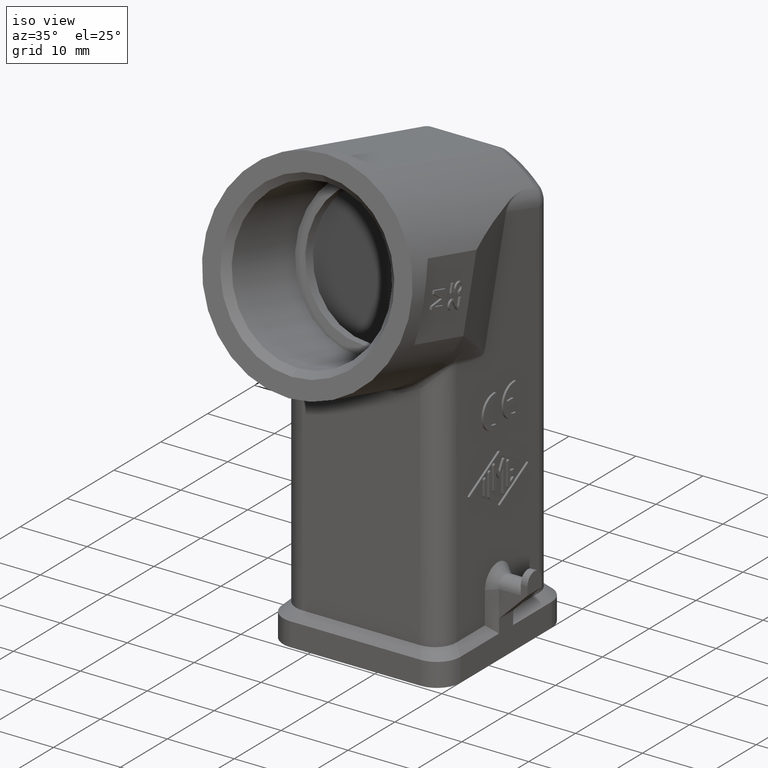
[diagram: clean part render]
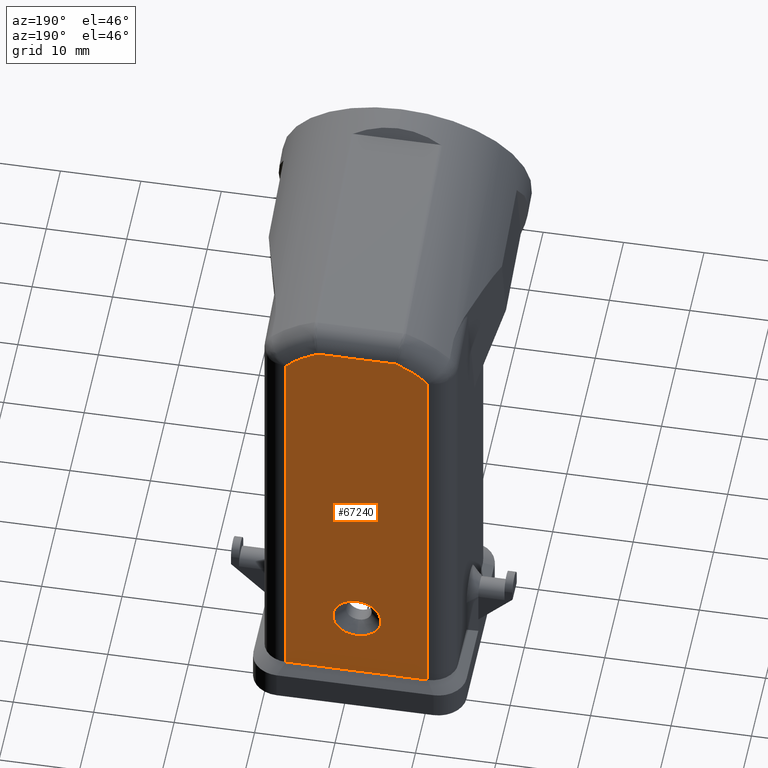
[diagram: tour spotlight — one face highlighted and labeled with its STEP entity id]
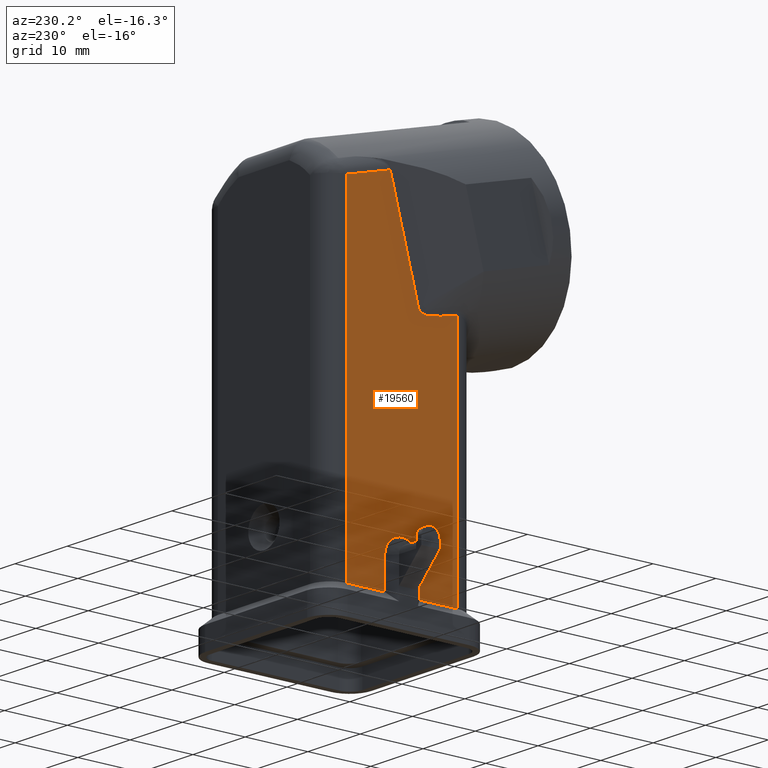
[diagram: tour spotlight — one face highlighted and labeled with its STEP entity id]
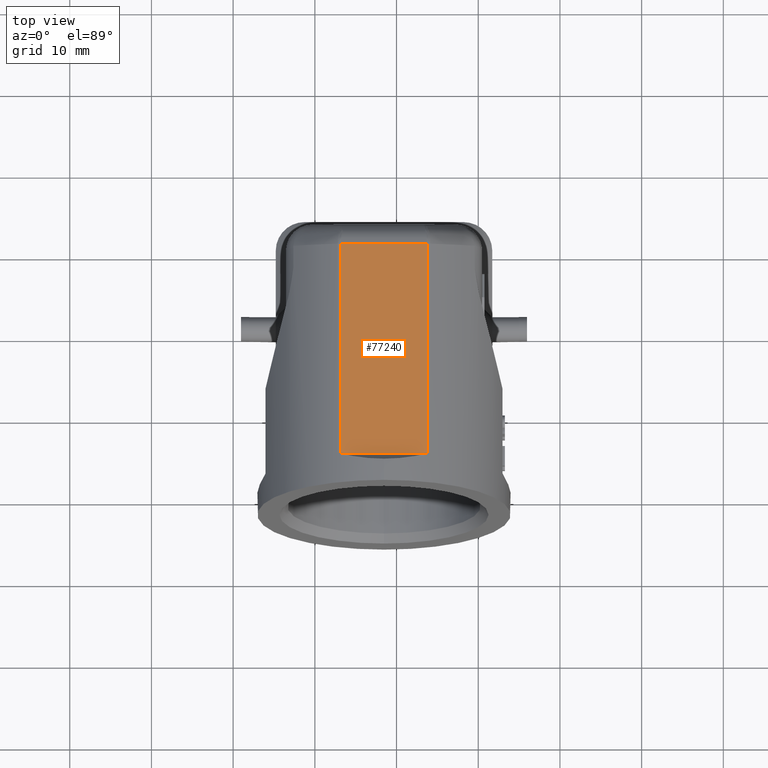
[diagram: tour spotlight — one face highlighted and labeled with its STEP entity id]
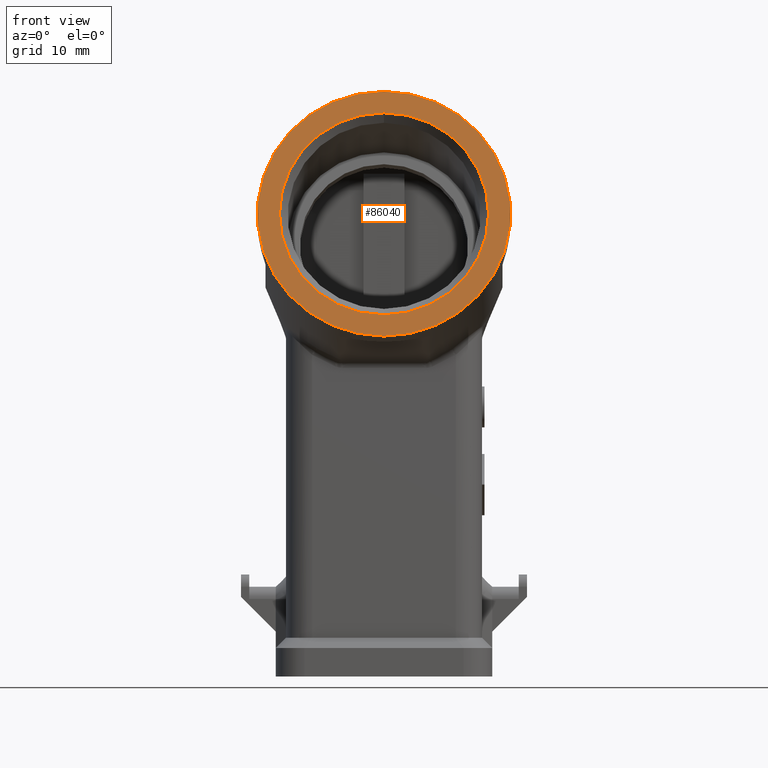
[diagram: tour spotlight — one face highlighted and labeled with its STEP entity id]
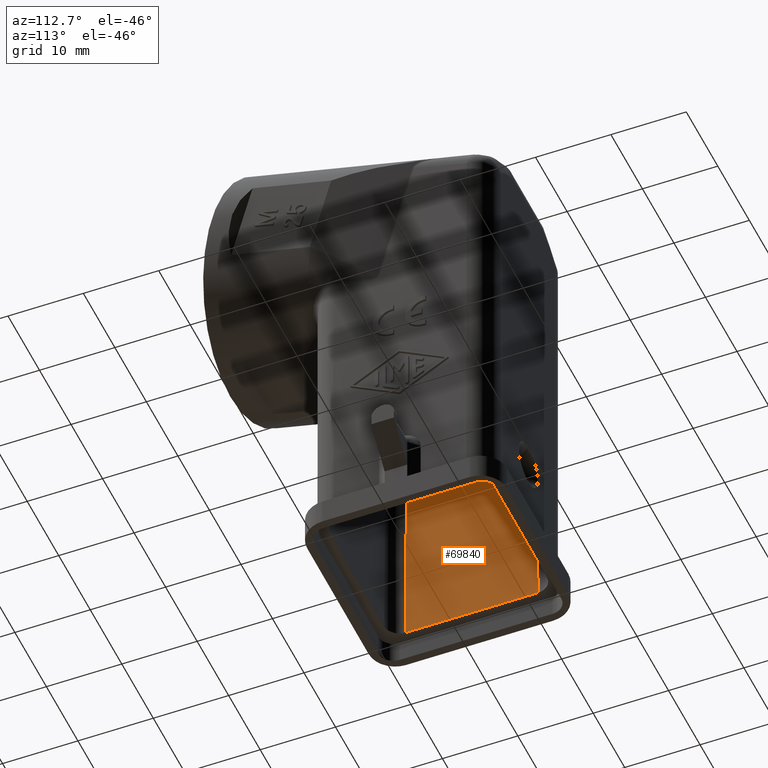
[diagram: tour spotlight — one face highlighted and labeled with its STEP entity id]
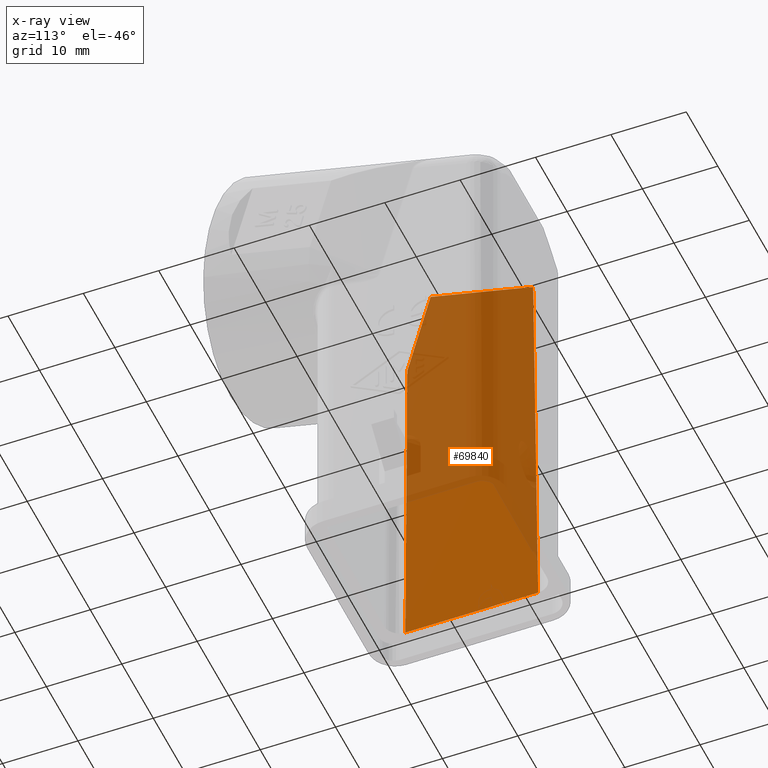
[diagram: x-ray of the same camera — body ghosted, this tour face saturated]
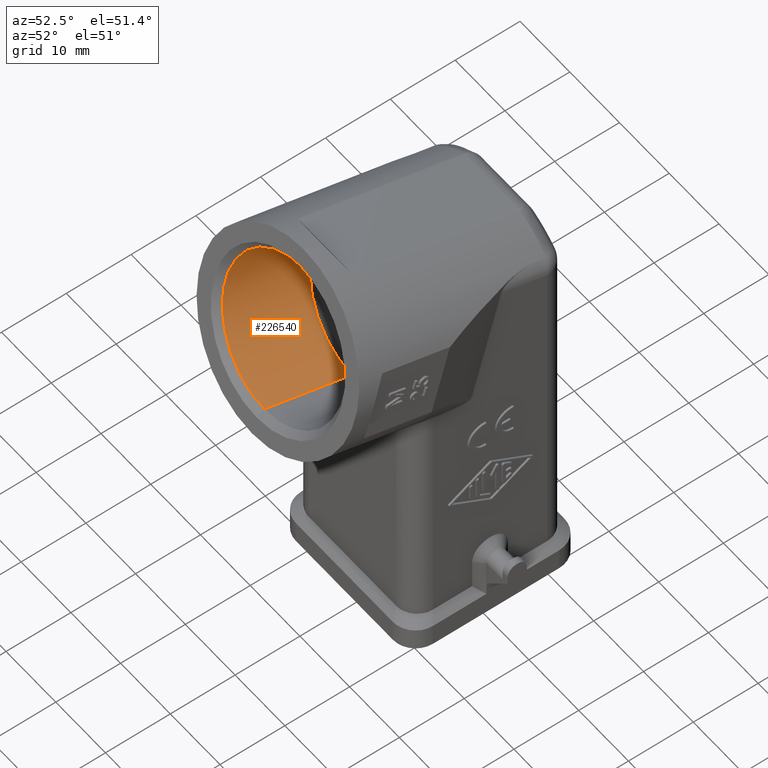
[diagram: tour spotlight — one face highlighted and labeled with its STEP entity id]
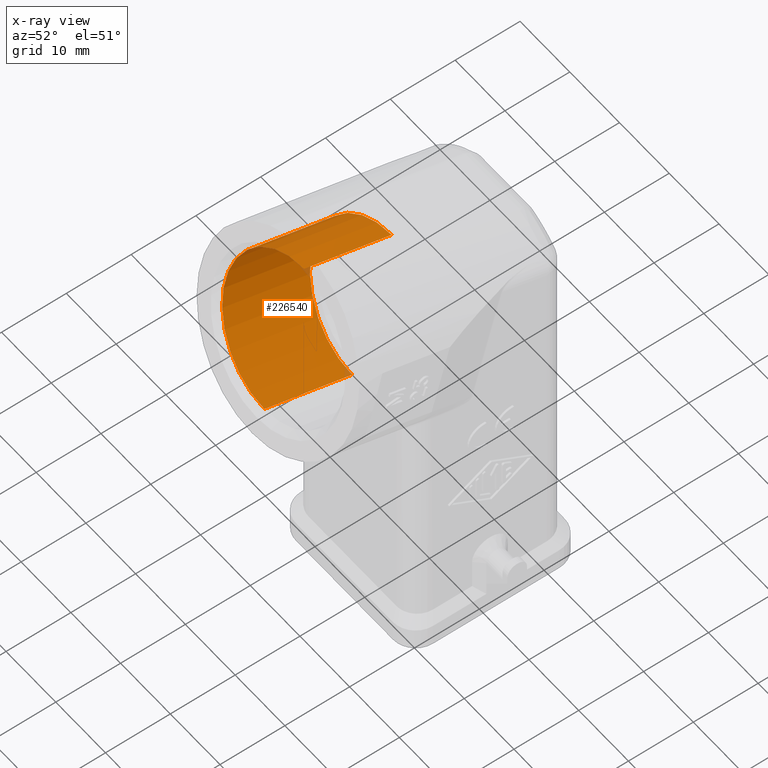
[diagram: x-ray of the same camera — body ghosted, this tour face saturated]
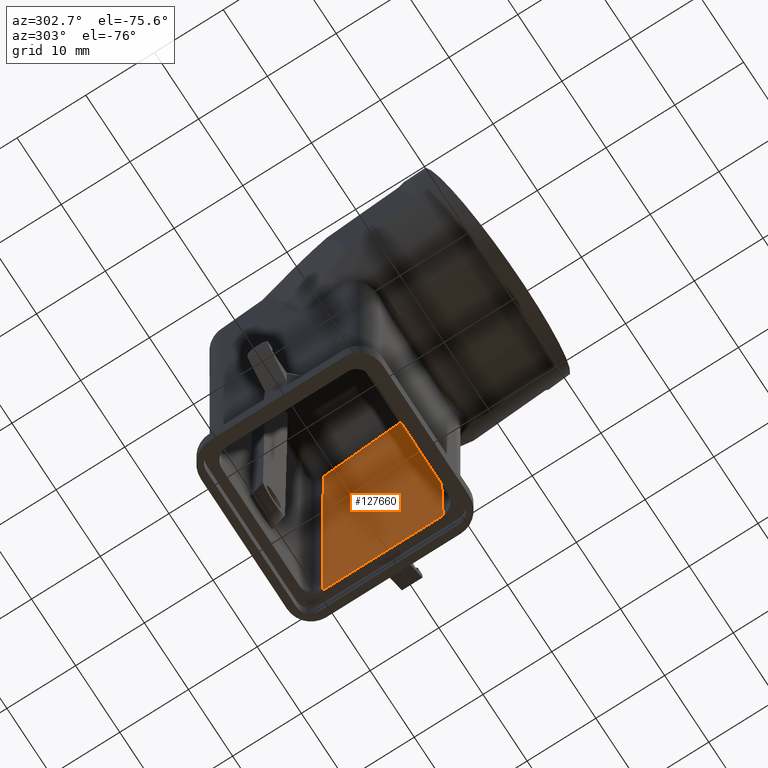
[diagram: tour spotlight — one face highlighted and labeled with its STEP entity id]
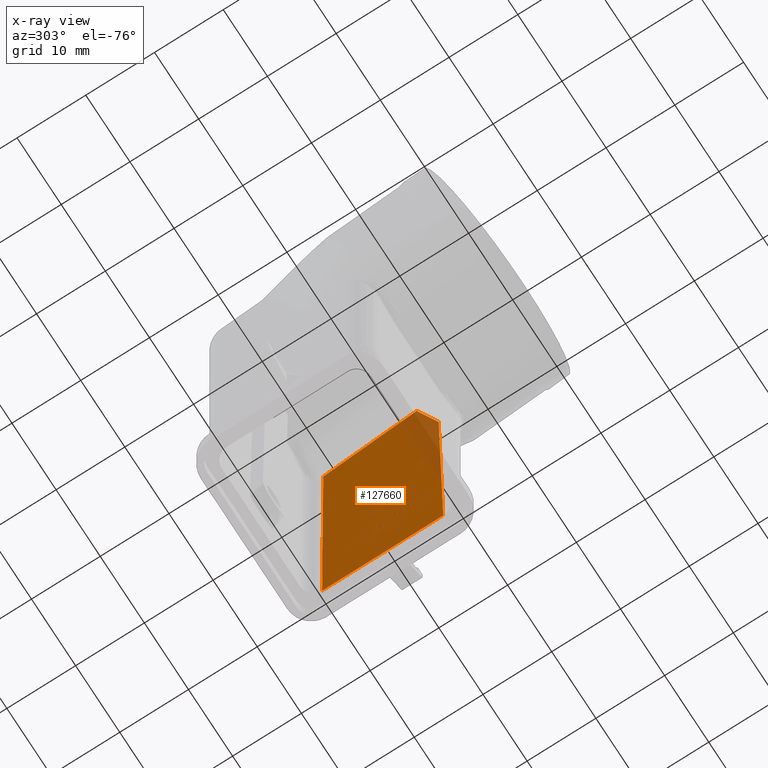
[diagram: x-ray of the same camera — body ghosted, this tour face saturated]
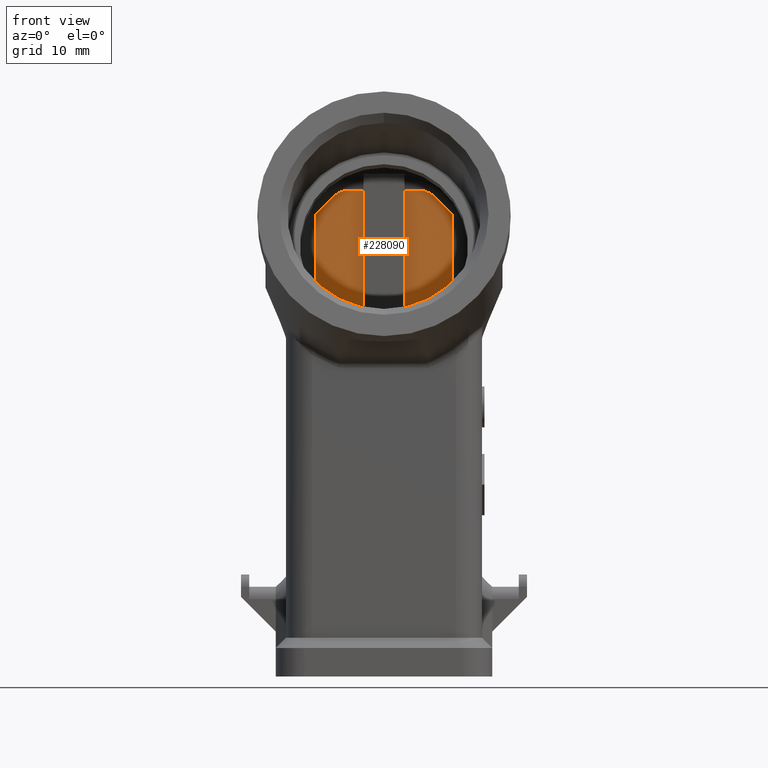
[diagram: tour spotlight — one face highlighted and labeled with its STEP entity id]
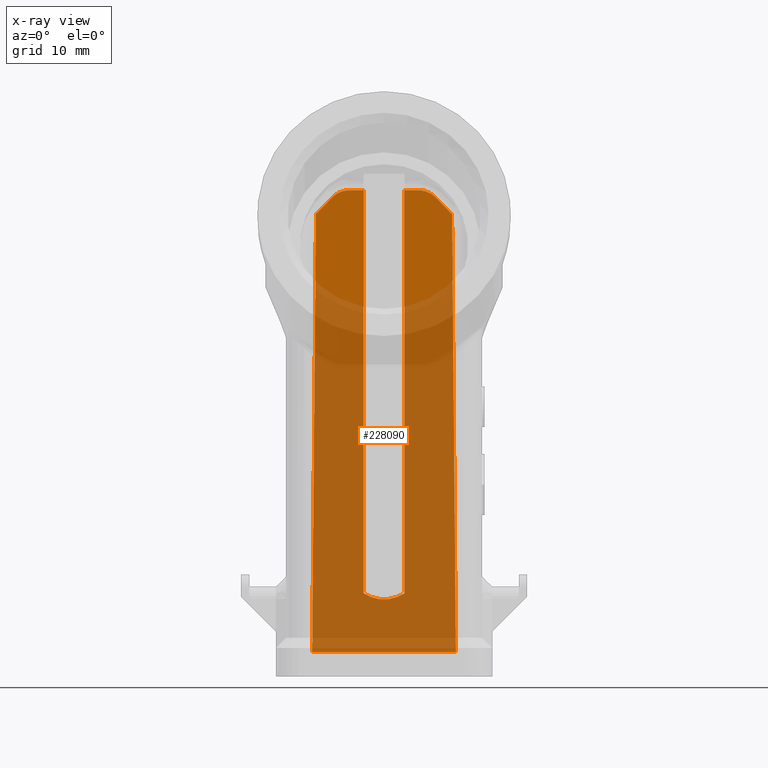
[diagram: x-ray of the same camera — body ghosted, this tour face saturated]
A machine part: a face-by-face anatomy tour. The part has 336 B-rep faces; the first image is the clean iso view, then the 8 largest visible faces are spotlighted one at a time (largest first), each with its STEP entity span.

Face 1 — auxiliary view, entity #67240. In plain terms, the highlighted planar face has unit normal (-0, -1, 0).
Definition (entity closure, byte-faithful):
#16920=CARTESIAN_POINT('',(7.30900703730865E-16,43.2856298515438,
56.1938619231087));
#16930=DIRECTION('',(1.,-2.28406469915895E-16,6.12013291600078E-17));
#16940=VECTOR('',#16930,1.);
#16950=LINE('',#16920,#16940);
#16960=CARTESIAN_POINT('',(-4.85798314623297,43.2856298515438,
56.1938619231085));
#16970=VERTEX_POINT('',#16960);
#16980=CARTESIAN_POINT('',(4.85798314623295,43.2856298515438,
56.1938619231085));
#16990=VERTEX_POINT('',#16980);
#17000=EDGE_CURVE('',#16970,#16990,#16950,.T.);
#42080=CARTESIAN_POINT('',(-8.80000000000005,43.2856298515438,
1.24999999999999));
#42090=VERTEX_POINT('',#42080);
#49460=CARTESIAN_POINT('',(-8.80000000000004,43.2856298515438,-3.5));
#49470=DIRECTION('',(0.,0.,1.));
#49480=VECTOR('',#49470,1.);
#49490=LINE('',#49460,#49480);
#49500=CARTESIAN_POINT('',(-8.80000000000005,43.2856298515438,
53.3919928742765));
#49510=VERTEX_POINT('',#49500);
#49520=EDGE_CURVE('',#42090,#49510,#49490,.T.);
#55840=CARTESIAN_POINT('',(-4.48104832289784E-15,43.2856298515438,13.5))
;
#55850=VERTEX_POINT('',#55840);
#56050=CARTESIAN_POINT('',(-3.18456548554015E-14,43.2856298515438,
7.49999999999997));
#56060=VERTEX_POINT('',#56050);
#56090=CARTESIAN_POINT('',(-1.79796545692776E-14,43.2856298515438,10.5))
;
#56100=DIRECTION('',(-3.97228643331991E-17,1.,0.));
#56110=DIRECTION('',(-4.62200009537459E-15,-1.83599082736598E-31,-1.));
#56120=AXIS2_PLACEMENT_3D('',#56090,#56100,#56110);
#56130=CIRCLE('',#56120,3.00000000000003);
#56140=EDGE_CURVE('',#55850,#56060,#56130,.T.);
#56450=CARTESIAN_POINT('',(8.80000000000002,43.2856298515438,
1.24999999999999));
#56460=VERTEX_POINT('',#56450);
#56490=CARTESIAN_POINT('',(0.,43.2856298515438,1.25));
#56500=DIRECTION('',(1.,-2.28406469915895E-16,-1.74315279842105E-32));
#56510=VECTOR('',#56500,1.);
#56520=LINE('',#56490,#56510);
#56530=EDGE_CURVE('',#42090,#56460,#56520,.T.);
#57930=CARTESIAN_POINT('',(-4.85798314615202,43.2856298515438,
56.1938619231445));
#57940=CARTESIAN_POINT('',(-4.91210413683624,43.2856298515438,
56.1697739848495));
#57950=CARTESIAN_POINT('',(-4.96605258596442,43.2856298515438,
56.1452859123296));
#57960=CARTESIAN_POINT('',(-5.31449420333209,43.2856298515438,
55.9840238903091));
#57970=CARTESIAN_POINT('',(-5.60360154307623,43.2856298515438,
55.8358142229987));
#57980=CARTESIAN_POINT('',(-6.16929843960284,43.2856298515438,
55.5166053085174));
#57990=CARTESIAN_POINT('',(-6.44565506302657,43.2856298515438,
55.3457480906608));
#58000=CARTESIAN_POINT('',(-6.98415426883113,43.2856298515438,
54.9824824365523));
#58010=CARTESIAN_POINT('',(-7.24606613497108,43.2856298515438,
54.7902459036616));
#58020=CARTESIAN_POINT('',(-7.5001949863847,43.2856298515438,
54.5878339211648));
#58030=CARTESIAN_POINT('',(-7.69921571777055,43.2856298515438,
54.4293151989745));
#58040=CARTESIAN_POINT('',(-7.89327004096959,43.2856298515438,
54.2647093999475));
#58050=CARTESIAN_POINT('',(-8.27098753693122,43.2856298515438,
53.9238481101173));
#58060=CARTESIAN_POINT('',(-8.4546507096938,43.2856298515438,
53.747592619314));
#58070=CARTESIAN_POINT('',(-8.68915248568532,43.2856298515438,
53.5083811957088));
#58080=CARTESIAN_POINT('',(-8.74485822656383,43.2856298515438,
53.4504509038786));
#58090=CARTESIAN_POINT('',(-8.8000000000471,43.2856298515438,
53.3919928742266));
#58100=B_SPLINE_CURVE_WITH_KNOTS('',3,(#57930,#57940,#57950,#57960,
#57970,#57980,#57990,#58000,#58010,#58020,#58030,#58040,#58050,#58060,
#58070,#58080,#58090),.UNSPECIFIED.,.F.,.F.,(4,2,2,2,3,2,2,4),(
85.0804374208576,85.2810161263551,86.3801878117313,87.4789743089414,
88.5772675370701,89.4373899508961,90.2975123647221,90.5690215133592),
.UNSPECIFIED.);
#58110=EDGE_CURVE('',#16970,#49510,#58100,.T.);
#66800=CARTESIAN_POINT('',(-13.25,43.2856298515438,1.25));
#66810=DIRECTION('',(-2.28406469915895E-16,-1.,0.));
#66820=DIRECTION('',(1.,-2.28406469915895E-16,0.));
#66830=AXIS2_PLACEMENT_3D('',#66800,#66810,#66820);
#66840=PLANE('',#66830);
#66850=EDGE_CURVE('',#56060,#55850,#56130,.T.);
#66860=ORIENTED_EDGE('',*,*,#66850,.F.);
#66870=ORIENTED_EDGE('',*,*,#56140,.F.);
#66880=EDGE_LOOP('',(#66870,#66860));
#66890=FACE_BOUND('',#66880,.T.);
#66900=ORIENTED_EDGE('',*,*,#58110,.F.);
#66910=ORIENTED_EDGE('',*,*,#49520,.T.);
#66920=ORIENTED_EDGE('',*,*,#56530,.F.);
#66930=CARTESIAN_POINT('',(8.80000000000001,43.2856298515438,-3.5));
#66940=DIRECTION('',(0.,0.,1.));
#66950=VECTOR('',#66940,1.);
#66960=LINE('',#66930,#66950);
#66970=CARTESIAN_POINT('',(8.80000000000002,43.2856298515438,
53.3919928742765));
#66980=VERTEX_POINT('',#66970);
#66990=EDGE_CURVE('',#56460,#66980,#66960,.T.);
#67000=ORIENTED_EDGE('',*,*,#66990,.F.);
#67010=CARTESIAN_POINT('',(4.857983146152,43.2856298515438,
56.1938619231445));
#67020=CARTESIAN_POINT('',(4.91210413683622,43.2856298515438,
56.1697739848495));
#67030=CARTESIAN_POINT('',(4.96605258596439,43.2856298515438,
56.1452859123296));
#67040=CARTESIAN_POINT('',(5.31449420333206,43.2856298515438,
55.9840238903091));
#67050=CARTESIAN_POINT('',(5.6036015430762,43.2856298515438,
55.8358142229987));
#67060=CARTESIAN_POINT('',(6.16929843960282,43.2856298515438,
55.5166053085174));
#67070=CARTESIAN_POINT('',(6.44565506302655,43.2856298515438,
55.3457480906608));
#67080=CARTESIAN_POINT('',(6.98415426883111,43.2856298515438,
54.9824824365523));
#67090=CARTESIAN_POINT('',(7.24606613497106,43.2856298515438,
54.7902459036616));
#67100=CARTESIAN_POINT('',(7.50019498638467,43.2856298515438,
54.5878339211648));
#67110=CARTESIAN_POINT('',(7.69921571777052,43.2856298515438,
54.4293151989745));
#67120=CARTESIAN_POINT('',(7.89327004096956,43.2856298515438,
54.2647093999475));
#67130=CARTESIAN_POINT('',(8.27098753693119,43.2856298515438,
53.9238481101173));
#67140=CARTESIAN_POINT('',(8.45465070969378,43.2856298515438,
53.747592619314));
#67150=CARTESIAN_POINT('',(8.68915248568529,43.2856298515438,
53.5083811957088));
#67160=CARTESIAN_POINT('',(8.7448582265638,43.2856298515438,
53.4504509038786));
#67170=CARTESIAN_POINT('',(8.80000000004707,43.2856298515438,
53.3919928742266));
#67180=B_SPLINE_CURVE_WITH_KNOTS('',3,(#67010,#67020,#67030,#67040,
#67050,#67060,#67070,#67080,#67090,#67100,#67110,#67120,#67130,#67140,
#67150,#67160,#67170),.UNSPECIFIED.,.F.,.F.,(4,2,2,2,3,2,2,4),(
85.0804374208576,85.2810161263551,86.3801878117313,87.4789743089414,
88.5772675370701,89.4373899508961,90.2975123647221,90.5690215133592),
.UNSPECIFIED.);
#67190=EDGE_CURVE('',#16990,#66980,#67180,.T.);
#67200=ORIENTED_EDGE('',*,*,#67190,.T.);
#67210=ORIENTED_EDGE('',*,*,#17000,.T.);
#67220=EDGE_LOOP('',(#67210,#67200,#67000,#66920,#66910,#66900));
#67230=FACE_OUTER_BOUND('',#67220,.T.);
#67240=ADVANCED_FACE('',(#66890,#67230),#66840,.F.);

Face 2 — auxiliary view, entity #19560. In plain terms, the highlighted planar face has unit normal (-1, 0, 0).
Definition (entity closure, byte-faithful):
#4620=CARTESIAN_POINT('',(-12.,22.4856298515438,1.25));
#4630=VERTEX_POINT('',#4620);
#4680=CARTESIAN_POINT('',(-12.,22.4856298515438,-3.5));
#4690=DIRECTION('',(0.,0.,1.));
#4700=VECTOR('',#4690,1.);
#4710=LINE('',#4680,#4700);
#4720=CARTESIAN_POINT('',(-12.,22.4856298515438,38.6973022111864));
#4730=VERTEX_POINT('',#4720);
#4740=EDGE_CURVE('',#4630,#4730,#4710,.T.);
#6270=CARTESIAN_POINT('',(-12.,34.0356298515438,6.));
#6280=VERTEX_POINT('',#6270);
#6510=CARTESIAN_POINT('',(-12.,34.0356298515438,1.25));
#6520=VERTEX_POINT('',#6510);
#6550=CARTESIAN_POINT('',(-12.,34.0356298515438,-3.5));
#6560=DIRECTION('',(0.,0.,1.));
#6570=VECTOR('',#6560,1.);
#6580=LINE('',#6550,#6570);
#6590=EDGE_CURVE('',#6520,#6280,#6580,.T.);
#15940=CARTESIAN_POINT('',(-12.,33.1551196408554,55.2490174341222));
#15950=VERTEX_POINT('',#15940);
#17520=CARTESIAN_POINT('',(-12.,31.2856298515438,54.5));
#17530=DIRECTION('',(-1.,4.60527994506155E-17,0.));
#17540=DIRECTION('',(-4.60527994506155E-17,-1.,0.));
#17550=AXIS2_PLACEMENT_3D('',#17520,#17530,#17540);
#17560=PLANE('',#17550);
#17570=CARTESIAN_POINT('',(-12.,28.6650454124902,38.4918329904324));
#17580=CARTESIAN_POINT('',(-12.,28.658407552892,38.4710673852753));
#17590=CARTESIAN_POINT('',(-12.,28.6513634272172,38.450508087265));
#17600=CARTESIAN_POINT('',(-12.,28.640005236563,38.4200184276398));
#17610=CARTESIAN_POINT('',(-12.,28.6360871726545,38.4099134223298));
#17620=CARTESIAN_POINT('',(-12.,28.6279566102855,38.3898264786181));
#17630=CARTESIAN_POINT('',(-12.,28.6237441118251,38.3798445402164));
#17640=CARTESIAN_POINT('',(-12.,28.6149942465141,38.3600103680997));
#17650=CARTESIAN_POINT('',(-12.,28.6104568796637,38.3501581343847));
#17660=CARTESIAN_POINT('',(-12.,28.6010268437349,38.3305900094197));
#17670=CARTESIAN_POINT('',(-12.,28.5961341746566,38.3208741181697));
#17680=CARTESIAN_POINT('',(-12.,28.5859631004341,38.301585315913));
#17690=CARTESIAN_POINT('',(-12.,28.5806846952899,38.2920124049062));
#17700=CARTESIAN_POINT('',(-12.,28.5697117150978,38.2730162009143));
#17710=CARTESIAN_POINT('',(-12.,28.5640171400499,38.2635929079292));
#17720=CARTESIAN_POINT('',(-12.,28.5422303388771,38.2291884658578));
#17730=CARTESIAN_POINT('',(-12.,28.5248991979087,38.2047668972134));
#17740=CARTESIAN_POINT('',(-12.,28.4877035721447,38.1581561523663));
#17750=CARTESIAN_POINT('',(-12.,28.467745836338,38.1358291851535));
#17760=CARTESIAN_POINT('',(-12.,28.4255784797306,38.0936843482291));
#17770=CARTESIAN_POINT('',(-12.,28.4032391209673,38.0737504443455));
#17780=CARTESIAN_POINT('',(-12.,28.3545579582244,38.0347802246168));
#17790=CARTESIAN_POINT('',(-12.,28.327907826425,38.0159319652352));
#17800=CARTESIAN_POINT('',(-12.,28.2728658799483,37.9812144629596));
#17810=CARTESIAN_POINT('',(-12.,28.2443990404622,37.9653500827794));
#17820=CARTESIAN_POINT('',(-12.,28.1860840457942,37.9362996585203));
#17830=CARTESIAN_POINT('',(-12.,28.1562294124759,37.9231676043697));
#17840=CARTESIAN_POINT('',(-12.,28.0955300982708,37.8993005289112));
#17850=CARTESIAN_POINT('',(-12.,28.0647391966876,37.8886281919675));
#17860=CARTESIAN_POINT('',(-12.,28.006616458634,37.8706606655363));
#17870=CARTESIAN_POINT('',(-12.,27.9794147616235,37.8631410243454));
#17880=CARTESIAN_POINT('',(-12.,27.9245900709717,37.8494780249132));
#17890=CARTESIAN_POINT('',(-12.,27.8970221223199,37.8433651991255));
#17900=CARTESIAN_POINT('',(-12.,27.8415870327101,37.8323541313501));
#17910=CARTESIAN_POINT('',(-12.,27.8137589565411,37.8274761711359));
#17920=CARTESIAN_POINT('',(-12.,27.7578967632835,37.8187906204405));
#17930=CARTESIAN_POINT('',(-12.,27.7298972606536,37.8149973351577));
#17940=CARTESIAN_POINT('',(-12.,27.6736914499364,37.8083455470819));
#17950=CARTESIAN_POINT('',(-12.,27.6455148721196,37.8054993692921));
#17960=CARTESIAN_POINT('',(-12.,27.5890617736708,37.8006418477416));
#17970=CARTESIAN_POINT('',(-12.,27.5608106159297,37.7986377319102));
#17980=CARTESIAN_POINT('',(-12.,27.5042382844447,37.7953683310848));
#17990=CARTESIAN_POINT('',(-12.,27.4759385339948,37.7941082154366));
#18000=CARTESIAN_POINT('',(-12.,27.4192977710309,37.7922448914528));
#18010=CARTESIAN_POINT('',(-12.,27.390966331199,37.7916451237086));
#18020=CARTESIAN_POINT('',(-12.,27.3240721837864,37.7909211663011));
#18030=CARTESIAN_POINT('',(-12.,27.2855314631041,37.7910504364708));
#18040=CARTESIAN_POINT('',(-12.,27.2084590114915,37.7922408625056));
#18050=CARTESIAN_POINT('',(-12.,27.1699434442842,37.7933056959957));
#18060=CARTESIAN_POINT('',(-12.,27.0929128806058,37.7962445365984));
#18070=CARTESIAN_POINT('',(-12.,27.0544220422504,37.7981208380777));
#18080=CARTESIAN_POINT('',(-12.,26.9774599848056,37.8025808610107));
#18090=CARTESIAN_POINT('',(-12.,26.938986942153,37.8051673898098));
#18100=CARTESIAN_POINT('',(-12.,26.8235676167094,37.8138638257092));
#18110=CARTESIAN_POINT('',(-12.,26.746746595908,37.8209054801531));
#18120=CARTESIAN_POINT('',(-12.,26.5933187372588,37.8369297530774));
#18130=CARTESIAN_POINT('',(-12.,26.5167428511693,37.8459179176196));
#18140=CARTESIAN_POINT('',(-12.,26.363607012519,37.8654773456315));
#18150=CARTESIAN_POINT('',(-12.,26.2871092124393,37.8760494259959));
#18160=CARTESIAN_POINT('',(-12.,26.1342507567469,37.8984800954264));
#18170=CARTESIAN_POINT('',(-12.,26.0579346819524,37.9103362639241));
#18180=CARTESIAN_POINT('',(-12.,25.9054336067749,37.9351163859407));
#18190=CARTESIAN_POINT('',(-12.,25.8292816446662,37.9480377591914));
#18200=CARTESIAN_POINT('',(-12.,25.6771064886169,37.9747767345691));
#18210=CARTESIAN_POINT('',(-12.,25.6010982432039,37.988593681349));
#18220=CARTESIAN_POINT('',(-12.,25.4123469376281,38.0238779191191));
#18230=CARTESIAN_POINT('',(-12.,25.2997244000594,38.0457956653496));
#18240=CARTESIAN_POINT('',(-12.,25.0747345942343,38.0909605736123));
#18250=CARTESIAN_POINT('',(-12.,24.9623920159077,38.1142058224532));
#18260=CARTESIAN_POINT('',(-12.,24.7378953939933,38.161783659728));
#18270=CARTESIAN_POINT('',(-12.,24.6257737688567,38.1861115129705));
#18280=CARTESIAN_POINT('',(-12.,24.4017005251958,38.2356640052048));
#18290=CARTESIAN_POINT('',(-12.,24.2897728626986,38.260884722897));
#18300=CARTESIAN_POINT('',(-12.,24.0660546117315,38.3120792464462));
#18310=CARTESIAN_POINT('',(-12.,23.9542821474078,38.3380499254154));
#18320=CARTESIAN_POINT('',(-12.,23.7308703220644,38.3906263278114));
#18330=CARTESIAN_POINT('',(-12.,23.6192448946684,38.4172294133321));
#18340=CARTESIAN_POINT('',(-12.,23.3961115903248,38.4709791742857));
#18350=CARTESIAN_POINT('',(-12.,23.2846146124877,38.4981236801033));
#18360=CARTESIAN_POINT('',(-12.,23.0617259844366,38.5528824556693));
#18370=CARTESIAN_POINT('',(-12.,22.9503352739161,38.5804968525072));
#18380=CARTESIAN_POINT('',(-12.,22.7405286030522,38.6329173647574));
#18390=CARTESIAN_POINT('',(-12.,22.6420817108826,38.657683344178));
#18400=CARTESIAN_POINT('',(-12.,22.5243303011453,38.6874882973221));
#18410=CARTESIAN_POINT('',(-12.,22.5049790009391,38.6923929160214));
#18420=CARTESIAN_POINT('',(-12.,22.4856298515438,38.6973022111864));
#18430=B_SPLINE_CURVE_WITH_KNOTS('',3,(#17570,#17580,#17590,#17600,
#17610,#17620,#17630,#17640,#17650,#17660,#17670,#17680,#17690,#17700,
#17710,#17720,#17730,#17740,#17750,#17760,#17770,#17780,#17790,#17800,
#17810,#17820,#17830,#17840,#17850,#17860,#17870,#17880,#17890,#17900,
#17910,#17920,#17930,#17940,#17950,#17960,#17970,#17980,#17990,#18000,
#18010,#18020,#18030,#18040,#18050,#18060,#18070,#18080,#18090,#18100,
#18110,#18120,#18130,#18140,#18150,#18160,#18170,#18180,#18190,#18200,
#18210,#18220,#18230,#18240,#18250,#18260,#18270,#18280,#18290,#18300,
#18310,#18320,#18330,#18340,#18350,#18360,#18370,#18380,#18390,#18400,
#18410,#18420),.UNSPECIFIED.,.F.,.F.,(4,2,2,2,2,2,2,2,2,2,2,2,2,2,2,2,2,
2,2,2,2,2,2,2,2,2,2,2,2,2,2,2,2,2,2,2,2,2,2,2,2,2,4),(0.,
0.0510548597011025,0.0765822895516538,0.102109719402205,
0.127637149252756,0.153164579103308,0.178692008953859,0.20421943880441,
0.272671834191601,0.340791662066526,0.409146956972404,0.484547283432192,
0.561134069813424,0.639157530269928,0.718429125350752,0.78798390505569,
0.858272511445346,0.929228211284645,1.00073318046745,1.07286982653449,
1.14541638244757,1.2183273262159,1.29154681436494,1.39155940965001,
1.49199133918958,1.59278751429417,1.6938862814274,1.89692820072619,
2.10076570852031,2.3055181723223,2.51075657525815,2.71639632828941,
2.9223538963059,3.22871651890558,3.5355253212858,3.84269144231133,
4.15013397006058,4.45783521326652,4.76571717360164,5.073749103248,
5.38190366820679,5.65458693547201,5.70821173584968),.UNSPECIFIED.);
#18440=CARTESIAN_POINT('',(-12.,28.6650454124902,38.4918329904324));
#18450=VERTEX_POINT('',#18440);
#18460=EDGE_CURVE('',#18450,#4730,#18430,.T.);
#18470=ORIENTED_EDGE('',*,*,#18460,.F.);
#18480=ORIENTED_EDGE('',*,*,#4740,.T.);
#18490=CARTESIAN_POINT('',(-12.,62.5712597030876,1.25));
#18500=DIRECTION('',(2.74469855959852E-16,1.,-3.97228643331991E-17));
#18510=VECTOR('',#18500,1.);
#18520=LINE('',#18490,#18510);
#18530=CARTESIAN_POINT('',(-12.,28.5356298515438,1.25));
#18540=VERTEX_POINT('',#18530);
#18550=EDGE_CURVE('',#4630,#18540,#18520,.T.);
#18560=ORIENTED_EDGE('',*,*,#18550,.F.);
#18570=CARTESIAN_POINT('',(-12.,28.5356298515438,-3.5));
#18580=DIRECTION('',(0.,0.,1.));
#18590=VECTOR('',#18580,1.);
#18600=LINE('',#18570,#18590);
#18610=CARTESIAN_POINT('',(-12.,28.5356298515438,6.));
#18620=VERTEX_POINT('',#18610);
#18630=EDGE_CURVE('',#18540,#18620,#18600,.T.);
#18640=ORIENTED_EDGE('',*,*,#18630,.F.);
#18650=CARTESIAN_POINT('',(-12.,31.2856298515438,6.));
#18660=DIRECTION('',(1.,-4.60527994506155E-17,0.));
#18670=DIRECTION('',(4.60527994506155E-17,1.,0.));
#18680=AXIS2_PLACEMENT_3D('',#18650,#18660,#18670);
#18690=CIRCLE('',#18680,2.75);
#18700=EDGE_CURVE('',#6280,#18620,#18690,.T.);
#18710=ORIENTED_EDGE('',*,*,#18700,.T.);
#18720=ORIENTED_EDGE('',*,*,#6590,.T.);
#18730=CARTESIAN_POINT('',(-12.,1.44500153395515E-15,1.25));
#18740=DIRECTION('',(-4.60527994506155E-17,-1.,-3.97228643331991E-17));
#18750=VECTOR('',#18740,1.);
#18760=LINE('',#18730,#18750);
#18770=CARTESIAN_POINT('',(-12.,40.0856298515438,1.25));
#18780=VERTEX_POINT('',#18770);
#18790=EDGE_CURVE('',#18780,#6520,#18760,.T.);
#18800=ORIENTED_EDGE('',*,*,#18790,.T.);
#18810=CARTESIAN_POINT('',(-12.,40.0856298515438,-3.5));
#18820=DIRECTION('',(0.,0.,1.));
#18830=VECTOR('',#18820,1.);
#18840=LINE('',#18810,#18830);
#18850=CARTESIAN_POINT('',(-12.,40.0856298515438,53.3919928200326));
#18860=VERTEX_POINT('',#18850);
#18870=EDGE_CURVE('',#18780,#18860,#18840,.T.);
#18880=ORIENTED_EDGE('',*,*,#18870,.F.);
#18890=CARTESIAN_POINT('',(-12.,22.5668535271911,58.0861347885244));
#18900=DIRECTION('',(0.,-0.965925826289068,0.258819045102521));
#18910=VECTOR('',#18900,1.);
#18920=LINE('',#18890,#18910);
#18930=EDGE_CURVE('',#18860,#15950,#18920,.T.);
#18940=ORIENTED_EDGE('',*,*,#18930,.F.);
#18950=CARTESIAN_POINT('',(-12.,28.6650454124902,38.4918329904324));
#18960=CARTESIAN_POINT('',(-12.,28.667297590119,38.5002382317706));
#18970=CARTESIAN_POINT('',(-12.,28.6695497677477,38.5086434731087));
#18980=CARTESIAN_POINT('',(-12.,28.762553768582,38.8557391295294));
#18990=CARTESIAN_POINT('',(-12.,28.8533055917875,39.1944295446119));
#19000=CARTESIAN_POINT('',(-12.,28.9626582151599,39.6025390909786));
#19010=CARTESIAN_POINT('',(-12.,28.9812590153268,39.6719582222627));
#19020=CARTESIAN_POINT('',(-12.,29.0184606156605,39.810796484831));
#19030=CARTESIAN_POINT('',(-12.,29.0370614158273,39.8802156161151));
#19040=CARTESIAN_POINT('',(-12.,29.074263016161,40.0190538786834));
#19050=CARTESIAN_POINT('',(-12.,29.0928638163279,40.0884730099675));
#19060=CARTESIAN_POINT('',(-12.,29.1672670169953,40.3661495351041));
#19070=CARTESIAN_POINT('',(-12.,29.2788718179964,40.7826643228089));
#19080=CARTESIAN_POINT('',(-12.,29.3904766189975,41.1991791105137));
#19090=CARTESIAN_POINT('',(-12.,29.5578838204992,41.8239512920709));
#19100=CARTESIAN_POINT('',(-12.,29.6694886215004,42.2404660797757));
#19110=CARTESIAN_POINT('',(-12.,29.9531508240449,43.2991078318588));
#19120=CARTESIAN_POINT('',(-12.,30.1252082255883,43.941234796237));
#19130=CARTESIAN_POINT('',(-12.,30.4693230286751,45.2254887249935));
#19140=CARTESIAN_POINT('',(-12.,30.6413804302185,45.8676156893718));
#19150=CARTESIAN_POINT('',(-12.,30.8227382318453,46.5444522193921));
#19160=CARTESIAN_POINT('',(-12.,30.8320386319287,46.5791617850342));
#19170=CARTESIAN_POINT('',(-12.,30.8506394320956,46.6485809163183));
#19180=CARTESIAN_POINT('',(-12.,30.859939832179,46.6832904819604));
#19190=CARTESIAN_POINT('',(-12.,30.8762884547171,46.7443043719063));
#19200=CARTESIAN_POINT('',(-12.,30.8833366771718,46.7706086962102));
#19210=CARTESIAN_POINT('',(-12.,30.8926370772552,46.8053182618523));
#19220=CARTESIAN_POINT('',(-12.,30.894889254884,46.8137235031905));
#19230=CARTESIAN_POINT('',(-12.,30.8993936101415,46.8305339858668));
#19240=CARTESIAN_POINT('',(-12.,30.9016457877702,46.838939227205));
#19250=CARTESIAN_POINT('',(-12.,30.9195734893983,46.9058463205439));
#19260=CARTESIAN_POINT('',(-12.,30.9352490133976,46.9643481725446));
#19270=CARTESIAN_POINT('',(-12.,30.9602249375216,47.0575595903413));
#19280=CARTESIAN_POINT('',(-12.,30.9695253376463,47.0922691561373));
#19290=CARTESIAN_POINT('',(-12.,30.9881261378956,47.1616882877292));
#19300=CARTESIAN_POINT('',(-12.,30.9974265380203,47.1963978535252));
#19310=CARTESIAN_POINT('',(-12.,31.1787843485622,47.8732344168172));
#19320=CARTESIAN_POINT('',(-12.,31.3508417589795,48.5153614143132));
#19330=CARTESIAN_POINT('',(-12.,31.6949565798141,49.7996154093052));
#19340=CARTESIAN_POINT('',(-12.,31.8670139902313,50.4417424068013));
#19350=CARTESIAN_POINT('',(-12.,32.1506761940336,51.5003841635783));
#19360=CARTESIAN_POINT('',(-12.,32.2622809874186,51.9168989228593));
#19370=CARTESIAN_POINT('',(-12.,32.4296881774961,52.5416710617809));
#19380=CARTESIAN_POINT('',(-12.,32.5412929708811,52.9581858210619));
#19390=CARTESIAN_POINT('',(-12.,32.6528977642661,53.3747005803429));
#19400=CARTESIAN_POINT('',(-12.,32.7273009612079,53.6523770915754));
#19410=CARTESIAN_POINT('',(-12.,32.7459017614572,53.7217962231673));
#19420=CARTESIAN_POINT('',(-12.,32.7831033619559,53.8606344863512));
#19430=CARTESIAN_POINT('',(-12.,32.8017041622052,53.9300536179431));
#19440=CARTESIAN_POINT('',(-12.,32.8389057627039,54.068891881127));
#19450=CARTESIAN_POINT('',(-12.,32.8575065629532,54.1383110127189));
#19460=CARTESIAN_POINT('',(-12.,32.9668592293144,54.546420719522));
#19470=CARTESIAN_POINT('',(-12.,33.0576110954263,54.8851112947332));
#19480=CARTESIAN_POINT('',(-12.,33.1506150966729,55.2322069526929));
#19490=CARTESIAN_POINT('',(-12.,33.1528674732766,55.2406122302912));
#19500=CARTESIAN_POINT('',(-12.,33.1551196408554,55.2490174341222));
#19510=(BOUNDED_CURVE() B_SPLINE_CURVE(3,(#18950,#18960,#18970,#18980,
#18990,#19000,#19010,#19020,#19030,#19040,#19050,#19060,#19070,#19080,
#19090,#19100,#19110,#19120,#19130,#19140,#19150,#19160,#19170,#19180,
#19190,#19200,#19210,#19220,#19230,#19240,#19250,#19260,#19270,#19280,
#19290,#19300,#19310,#19320,#19330,#19340,#19350,#19360,#19370,#19380,
#19390,#19400,#19410,#19420,#19430,#19440,#19450,#19460,#19470,#19480,
#19490,#19500),.UNSPECIFIED.,.F.,.F.) B_SPLINE_CURVE_WITH_KNOTS((4,2,2,2
,2,2,1,2,2,2,2,2,2,2,2,2,2,2,2,2,2,2,1,2,2,2,2,2,4),(0.,
0.0261052384489282,1.07801959645205,1.29362351574246,1.50922743503287,
1.72483135432328,2.37164311219451,3.01845487006574,4.31207838580819,
6.30641463924448,8.30075089268077,8.40855285232598,8.51635481197119,
8.59805153316744,8.62415677161637,8.65026201006447,8.83195873175148,
8.93976069187109,9.04756265199071,11.0418990082189,13.0362353644472,
14.3298587918673,14.9766705055774,15.6234822192875,15.8390861395267,
16.0546900597659,16.2702939800051,17.3222088353056,17.3483135812013),
.UNSPECIFIED.) CURVE() GEOMETRIC_REPRESENTATION_ITEM() 
RATIONAL_B_SPLINE_CURVE((1.,1.,1.,1.,1.,1.,1.,1.,1.,1.,1.,1.,1.,1.,1.,1.
,1.,1.,1.,1.,1.,1.,1.,1.,1.,1.,1.,1.,1.,1.,1.,1.,1.,1.,1.,1.,1.,1.,1.,1.
,1.,1.,1.,1.,1.,1.,1.,1.,1.,1.,1.,1.,1.,1.,1.,1.)) REPRESENTATION_ITEM(
''));
#19520=EDGE_CURVE('',#18450,#15950,#19510,.T.);
#19530=ORIENTED_EDGE('',*,*,#19520,.T.);
#19540=EDGE_LOOP('',(#19530,#18940,#18880,#18800,#18720,#18710,#18640,
#18560,#18480,#18470));
#19550=FACE_OUTER_BOUND('',#19540,.T.);
#19560=ADVANCED_FACE('',(#19550),#17560,.T.);

Face 3 — top view, entity #77240. In plain terms, the highlighted planar face has unit normal (-0, -0.2588, -0.9659).
Definition (entity closure, byte-faithful):
#17150=CARTESIAN_POINT('',(5.29150262212912,40.9138507958718,
59.2848245672337));
#17160=VERTEX_POINT('',#17150);
#17190=CARTESIAN_POINT('',(0.,40.9138507958718,59.2848245672337));
#17200=DIRECTION('',(1.,-2.28406469915895E-16,6.12013291600078E-17));
#17210=VECTOR('',#17200,1.);
#17220=LINE('',#17190,#17210);
#17230=CARTESIAN_POINT('',(-5.29150262212914,40.9138507958718,
59.2848245672337));
#17240=VERTEX_POINT('',#17230);
#17250=EDGE_CURVE('',#17240,#17160,#17220,.T.);
#40660=CARTESIAN_POINT('',(5.29150262212912,15.1124315627999,
66.1982940143121));
#40670=VERTEX_POINT('',#40660);
#40780=CARTESIAN_POINT('',(-5.29150262212914,15.1124315627999,
66.1982940143121));
#40790=VERTEX_POINT('',#40780);
#40820=CARTESIAN_POINT('',(0.,15.1124315627999,66.1982940143122));
#40830=DIRECTION('',(-1.,-1.5695531734223E-17,-5.85765218839298E-17));
#40840=VECTOR('',#40830,1.);
#40850=LINE('',#40820,#40840);
#40860=EDGE_CURVE('',#40670,#40790,#40850,.T.);
#77030=CARTESIAN_POINT('',(-14.5,11.5385060055303,67.1559244811915));
#77040=DIRECTION('',(-0.,-0.258819045102521,-0.965925826289068));
#77050=DIRECTION('',(-1.,0.,0.));
#77060=AXIS2_PLACEMENT_3D('',#77030,#77040,#77050);
#77070=PLANE('',#77060);
#77080=ORIENTED_EDGE('',*,*,#17250,.F.);
#77090=CARTESIAN_POINT('',(5.29150262212912,24.0955417472882,
63.7912768948587));
#77100=DIRECTION('',(0.,-0.965925826289068,0.258819045102521));
#77110=VECTOR('',#77100,1.);
#77120=LINE('',#77090,#77110);
#77130=EDGE_CURVE('',#17160,#40670,#77120,.T.);
#77140=ORIENTED_EDGE('',*,*,#77130,.F.);
#77150=ORIENTED_EDGE('',*,*,#40860,.F.);
#77160=CARTESIAN_POINT('',(-5.29150262212914,24.0955417472882,
63.7912768948587));
#77170=DIRECTION('',(0.,-0.965925826289068,0.258819045102521));
#77180=VECTOR('',#77170,1.);
#77190=LINE('',#77160,#77180);
#77200=EDGE_CURVE('',#17240,#40790,#77190,.T.);
#77210=ORIENTED_EDGE('',*,*,#77200,.T.);
#77220=EDGE_LOOP('',(#77210,#77150,#77140,#77080));
#77230=FACE_OUTER_BOUND('',#77220,.T.);
#77240=ADVANCED_FACE('',(#77230),#77070,.F.);

Face 4 — front view, entity #86040. In plain terms, the highlighted planar face has unit normal (0, -0.9659, 0.2588).
Definition (entity closure, byte-faithful):
#6820=CARTESIAN_POINT('',(7.105427357601E-15,11.098513628856,
65.5138505765001));
#6830=VERTEX_POINT('',#6820);
#6860=CARTESIAN_POINT('',(7.105427357601E-15,7.78562985154376,53.15));
#6870=DIRECTION('',(0.,0.965925826289068,-0.258819045102521));
#6880=DIRECTION('',(0.,-0.258819045102521,-0.965925826289068));
#6890=AXIS2_PLACEMENT_3D('',#6860,#6870,#6880);
#6900=CIRCLE('',#6890,12.8);
#6910=CARTESIAN_POINT('',(5.53787945469239E-15,4.47274607423153,
40.7861494234999));
#6920=VERTEX_POINT('',#6910);
#6930=EDGE_CURVE('',#6830,#6920,#6900,.T.);
#25380=CARTESIAN_POINT('',(7.105427357601E-15,3.77393465245468,
38.1781496925194));
#25390=VERTEX_POINT('',#25380);
#34560=CARTESIAN_POINT('',(9.0036298962794E-15,11.7973250506328,
68.1218503074805));
#34570=VERTEX_POINT('',#34560);
#34600=CARTESIAN_POINT('',(7.10542735760101E-15,7.78562985154376,53.15))
;
#34610=DIRECTION('',(0.,-0.965925826289068,0.258819045102521));
#34620=DIRECTION('',(1.,0.,0.));
#34630=AXIS2_PLACEMENT_3D('',#34600,#34610,#34620);
#34640=CIRCLE('',#34630,15.5);
#34650=EDGE_CURVE('',#34570,#25390,#34640,.T.);
#85890=CARTESIAN_POINT('',(9.08593993821906,17.1554209827116,
88.1185365578265));
#85900=DIRECTION('',(0.,-0.965925826289068,0.258819045102521));
#85910=DIRECTION('',(0.,-0.258819045102521,-0.965925826289068));
#85920=AXIS2_PLACEMENT_3D('',#85890,#85900,#85910);
#85930=PLANE('',#85920);
#85940=EDGE_CURVE('',#6920,#6830,#6900,.T.);
#85950=ORIENTED_EDGE('',*,*,#85940,.T.);
#85960=ORIENTED_EDGE('',*,*,#6930,.T.);
#85970=EDGE_LOOP('',(#85960,#85950));
#85980=FACE_BOUND('',#85970,.T.);
#85990=EDGE_CURVE('',#25390,#34570,#34640,.T.);
#86000=ORIENTED_EDGE('',*,*,#85990,.T.);
#86010=ORIENTED_EDGE('',*,*,#34650,.T.);
#86020=EDGE_LOOP('',(#86010,#86000));
#86030=FACE_OUTER_BOUND('',#86020,.T.);
#86040=ADVANCED_FACE('',(#85980,#86030),#85930,.T.);

Face 5 — auxiliary view, entity #69840. An x-ray twin of the same camera follows (body ghosted, this face saturated) — the face is partly hidden behind the body. In plain terms, the highlighted planar face has unit normal (-1, 0, 0.0087).
Definition (entity closure, byte-faithful):
#670=CARTESIAN_POINT('',(-10.8,22.4855536976721,-0.5));
#680=VERTEX_POINT('',#670);
#840=CARTESIAN_POINT('',(-10.4032079485195,22.8823457491527,
44.9678655611996));
#850=VERTEX_POINT('',#840);
#880=CARTESIAN_POINT('',(-10.8260282927292,22.459525404943,
-3.48254692900325));
#890=DIRECTION('',(-0.00872620324394422,-0.00872620324394422,
-0.99992385047757));
#900=VECTOR('',#890,1.);
#910=LINE('',#880,#900);
#920=EDGE_CURVE('',#850,#680,#910,.T.);
#21690=CARTESIAN_POINT('',(-10.2397239795171,9.21020918022522E-17,
63.7012728869648));
#21700=DIRECTION('',(0.00225867382688449,-0.965923362398725,
0.2588183849051));
#21710=VECTOR('',#21700,1.);
#21720=LINE('',#21690,#21710);
#21730=CARTESIAN_POINT('',(-10.3323651806133,39.6180711860287,
53.0856427069894));
#21740=VERTEX_POINT('',#21730);
#21750=CARTESIAN_POINT('',(-10.3005981304083,26.0328710644902,
56.7257861085709));
#21760=VERTEX_POINT('',#21750);
#21770=EDGE_CURVE('',#21740,#21760,#21720,.T.);
#65610=CARTESIAN_POINT('',(-10.8261806033723,9.89542031316902,-3.5));
#65620=DIRECTION('',(-0.00842920751166141,-0.258809850193416,
-0.965891510421117));
#65630=VECTOR('',#65620,1.);
#65640=LINE('',#65610,#65630);
#65650=EDGE_CURVE('',#21760,#850,#65640,.T.);
#66390=CARTESIAN_POINT('',(-10.8,40.0857060054154,-0.5));
#66400=VERTEX_POINT('',#66390);
#66450=CARTESIAN_POINT('',(-10.8260282927292,40.1117342981446,
-3.48254692900325));
#66460=DIRECTION('',(0.00872620324394422,-0.00872620324394422,
0.99992385047757));
#66470=VECTOR('',#66460,1.);
#66480=LINE('',#66450,#66470);
#66490=EDGE_CURVE('',#66400,#21740,#66480,.T.);
#69670=CARTESIAN_POINT('',(-10.8,0.,-0.5));
#69680=DIRECTION('',(-0.999961923064171,4.60510459011261E-17,
0.00872653549837393));
#69690=DIRECTION('',(4.60527994506155E-17,1.,0.));
#69700=AXIS2_PLACEMENT_3D('',#69670,#69680,#69690);
#69710=PLANE('',#69700);
#69720=CARTESIAN_POINT('',(-10.8,1.30050138055964E-15,-0.5));
#69730=DIRECTION('',(4.60527994506155E-17,1.,0.));
#69740=VECTOR('',#69730,1.);
#69750=LINE('',#69720,#69740);
#69760=EDGE_CURVE('',#680,#66400,#69750,.T.);
#69770=ORIENTED_EDGE('',*,*,#69760,.T.);
#69780=ORIENTED_EDGE('',*,*,#920,.T.);
#69790=ORIENTED_EDGE('',*,*,#65650,.T.);
#69800=ORIENTED_EDGE('',*,*,#21770,.T.);
#69810=ORIENTED_EDGE('',*,*,#66490,.T.);
#69820=EDGE_LOOP('',(#69810,#69800,#69790,#69780,#69770));
#69830=FACE_OUTER_BOUND('',#69820,.T.);
#69840=ADVANCED_FACE('',(#69830),#69710,.F.);

Face 6 — auxiliary view, entity #226540. An x-ray twin of the same camera follows (body ghosted, this face saturated) — the face is partly hidden behind the body. In plain terms, the highlighted cylindrical surface (partial cylindrical patch) has radius 11.8 mm, axis along (0, 0.9659, -0.2588).
Definition (entity closure, byte-faithful):
#6800=CARTESIAN_POINT('',(7.105427357601E-15,11.8056204100426,
64.2891057051085));
#6810=VERTEX_POINT('',#6800);
#6990=CARTESIAN_POINT('',(5.66034413460713E-15,5.69749094562309,
41.4932562046865));
#7000=VERTEX_POINT('',#6990);
#7030=CARTESIAN_POINT('',(7.105427357601E-15,8.75155567783283,
52.8911809548975));
#7040=DIRECTION('',(0.,0.965925826289068,-0.258819045102521));
#7050=DIRECTION('',(0.,-0.258819045102521,-0.965925826289068));
#7060=AXIS2_PLACEMENT_3D('',#7030,#7040,#7050);
#7070=CIRCLE('',#7060,11.8);
#85370=CARTESIAN_POINT('',(7.105427357601E-15,22.2745172458798,
49.2677143234622));
#85380=DIRECTION('',(0.,0.965925826289068,-0.258819045102521));
#85390=DIRECTION('',(0.,-0.258819045102521,-0.965925826289068));
#85400=AXIS2_PLACEMENT_3D('',#85370,#85380,#85390);
#85410=CIRCLE('',#85400,11.8);
#85420=CARTESIAN_POINT('',(7.105427357601E-15,19.22045251367,
37.8697895732512));
#85430=VERTEX_POINT('',#85420);
#85440=CARTESIAN_POINT('',(5.66034413460713E-15,25.3285819780895,
60.6656390736732));
#85450=VERTEX_POINT('',#85440);
#85460=EDGE_CURVE('',#85430,#85450,#85410,.T.);
#85650=CARTESIAN_POINT('',(5.66034413460713E-15,10.8396945837535,
64.547924750211));
#85660=DIRECTION('',(0.,0.965925826289068,-0.258819045102521));
#85670=VECTOR('',#85660,1.);
#85680=LINE('',#85650,#85670);
#85690=EDGE_CURVE('',#6810,#85450,#85680,.T.);
#85720=CARTESIAN_POINT('',(7.105427357601E-15,4.73156511933402,
41.752075249789));
#85730=DIRECTION('',(0.,0.965925826289068,-0.258819045102521));
#85740=VECTOR('',#85730,1.);
#85750=LINE('',#85720,#85740);
#85760=EDGE_CURVE('',#7000,#85430,#85750,.T.);
#226280=EDGE_CURVE('',#7000,#6810,#7070,.T.);
#226430=CARTESIAN_POINT('',(7.105427357601E-15,7.78562985154377,53.15));
#226440=DIRECTION('',(0.,0.965925826289068,-0.258819045102521));
#226450=DIRECTION('',(0.,-0.258819045102521,-0.965925826289068));
#226460=AXIS2_PLACEMENT_3D('',#226430,#226440,#226450);
#226470=CYLINDRICAL_SURFACE('',#226460,11.8);
#226480=ORIENTED_EDGE('',*,*,#226280,.F.);
#226490=ORIENTED_EDGE('',*,*,#85690,.F.);
#226500=ORIENTED_EDGE('',*,*,#85460,.T.);
#226510=ORIENTED_EDGE('',*,*,#85760,.T.);
#226520=EDGE_LOOP('',(#226510,#226500,#226490,#226480));
#226530=FACE_OUTER_BOUND('',#226520,.T.);
#226540=ADVANCED_FACE('',(#226530),#226470,.F.);

Face 7 — auxiliary view, entity #127660. An x-ray twin of the same camera follows (body ghosted, this face saturated) — the face is partly hidden behind the body. In plain terms, the highlighted planar face has unit normal (-1, -0, -0.0087).
Definition (entity closure, byte-faithful):
#65040=CARTESIAN_POINT('',(10.4032079485194,22.8823457491527,
44.9678655611996));
#65050=VERTEX_POINT('',#65040);
#65100=CARTESIAN_POINT('',(10.8261806033723,9.89542031316902,-3.5));
#65110=DIRECTION('',(0.00842920751166141,-0.258809850193416,
-0.965891510421117));
#65120=VECTOR('',#65110,1.);
#65130=LINE('',#65100,#65120);
#65140=CARTESIAN_POINT('',(10.3005981304083,26.0328710644902,
56.7257861085709));
#65150=VERTEX_POINT('',#65140);
#65160=EDGE_CURVE('',#65150,#65050,#65130,.T.);
#71310=CARTESIAN_POINT('',(10.8,40.0857060054154,-0.5));
#71320=VERTEX_POINT('',#71310);
#71370=CARTESIAN_POINT('',(10.8,1.30050138055964E-15,-0.5));
#71380=DIRECTION('',(-4.60527994506155E-17,1.,0.));
#71390=VECTOR('',#71380,1.);
#71400=LINE('',#71370,#71390);
#71410=CARTESIAN_POINT('',(10.8,22.4855536976721,-0.5));
#71420=VERTEX_POINT('',#71410);
#71430=EDGE_CURVE('',#71420,#71320,#71400,.T.);
#98320=CARTESIAN_POINT('',(10.8260282927292,22.459525404943,
-3.48254692900325));
#98330=DIRECTION('',(0.00872620324394422,-0.00872620324394422,
-0.99992385047757));
#98340=VECTOR('',#98330,1.);
#98350=LINE('',#98320,#98340);
#98360=EDGE_CURVE('',#65050,#71420,#98350,.T.);
#127420=CARTESIAN_POINT('',(10.8,0.,-0.5));
#127430=DIRECTION('',(-0.999961923064171,-4.60510459011261E-17,
-0.00872653549837393));
#127440=DIRECTION('',(-4.60527994506155E-17,1.,0.));
#127450=AXIS2_PLACEMENT_3D('',#127420,#127430,#127440);
#127460=PLANE('',#127450);
#127470=CARTESIAN_POINT('',(10.239723979517,9.21020918022522E-17,
63.7012728869648));
#127480=DIRECTION('',(-0.00225867382688449,-0.965923362398725,
0.2588183849051));
#127490=VECTOR('',#127480,1.);
#127500=LINE('',#127470,#127490);
#127510=CARTESIAN_POINT('',(10.3323651806133,39.6180711860287,
53.0856427069894));
#127520=VERTEX_POINT('',#127510);
#127530=EDGE_CURVE('',#127520,#65150,#127500,.T.);
#127540=ORIENTED_EDGE('',*,*,#127530,.F.);
#127550=ORIENTED_EDGE('',*,*,#65160,.F.);
#127560=ORIENTED_EDGE('',*,*,#98360,.F.);
#127570=ORIENTED_EDGE('',*,*,#71430,.F.);
#127580=CARTESIAN_POINT('',(10.8260282927292,40.1117342981446,
-3.48254692900325));
#127590=DIRECTION('',(0.00872620324394422,0.00872620324394422,
-0.99992385047757));
#127600=VECTOR('',#127590,1.);
#127610=LINE('',#127580,#127600);
#127620=EDGE_CURVE('',#127520,#71320,#127610,.T.);
#127630=ORIENTED_EDGE('',*,*,#127620,.T.);
#127640=EDGE_LOOP('',(#127630,#127570,#127560,#127550,#127540));
#127650=FACE_OUTER_BOUND('',#127640,.T.);
#127660=ADVANCED_FACE('',(#127650),#127460,.T.);

Face 8 — front view, entity #228090. An x-ray twin of the same camera follows (body ghosted, this face saturated) — the face is partly hidden behind the body. In plain terms, the highlighted planar face has unit normal (0, -1, -0.0087).
Definition (entity closure, byte-faithful):
#34870=CARTESIAN_POINT('',(-2.50000000000002,41.5922746562694,
56.0329058607694));
#34880=VERTEX_POINT('',#34870);
#34930=CARTESIAN_POINT('',(-4.23119149057962,41.5922746562694,
56.0329058607694));
#34940=DIRECTION('',(1.,0.,0.));
#34950=VECTOR('',#34940,1.);
#34960=LINE('',#34930,#34950);
#34970=CARTESIAN_POINT('',(-4.23118849057962,41.5922746562694,
56.0329058607694));
#34980=VERTEX_POINT('',#34970);
#34990=EDGE_CURVE('',#34980,#34880,#34960,.T.);
#52240=CARTESIAN_POINT('',(2.49999999998437,42.0229625662829,
6.68095962531314));
#52250=VERTEX_POINT('',#52240);
#52420=CARTESIAN_POINT('',(2.49999999999999,41.5922746562694,
56.0329058607694));
#52430=VERTEX_POINT('',#52420);
#52460=CARTESIAN_POINT('',(2.49999999999999,42.111810454916,-3.5));
#52470=DIRECTION('',(0.,0.00872653549837393,-0.999961923064171));
#52480=VECTOR('',#52470,1.);
#52490=LINE('',#52460,#52480);
#52500=EDGE_CURVE('',#52430,#52250,#52490,.T.);
#66410=CARTESIAN_POINT('',(-8.8000761538717,42.0856298515438,-0.5));
#66420=VERTEX_POINT('',#66410);
#66600=CARTESIAN_POINT('',(-8.33244133448495,41.617995032157,
53.0856427069894));
#66610=VERTEX_POINT('',#66600);
#66640=CARTESIAN_POINT('',(-8.80013926098325,42.0856929586553,
-0.507231358726024));
#66650=DIRECTION('',(0.00872620324394421,-0.00872620324394421,
0.99992385047757));
#66660=VECTOR('',#66650,1.);
#66670=LINE('',#66640,#66660);
#66680=EDGE_CURVE('',#66420,#66610,#66670,.T.);
#71330=CARTESIAN_POINT('',(8.80007615387167,42.0856298515438,-0.5));
#71340=VERTEX_POINT('',#71330);
#71560=CARTESIAN_POINT('',(0.,42.0856298515438,-0.5));
#71570=DIRECTION('',(-1.,-2.06516933760453E-16,0.));
#71580=VECTOR('',#71570,1.);
#71590=LINE('',#71560,#71580);
#71600=EDGE_CURVE('',#71340,#66420,#71590,.T.);
#72560=CARTESIAN_POINT('',(7.105427357601E-15,41.9894960155748,
10.5158464954314));
#72570=DIRECTION('',(-3.85185988877447E-34,0.999961923064171,
0.00872653549837393));
#72580=DIRECTION('',(-1.,2.36163731245649E-18,-2.706168317294E-16));
#72590=AXIS2_PLACEMENT_3D('',#72560,#72570,#72580);
#72600=CIRCLE('',#72590,4.57793373876729);
#72610=CARTESIAN_POINT('',(-2.49999999998691,42.0229625662829,
6.6809596253148));
#72620=VERTEX_POINT('',#72610);
#72630=EDGE_CURVE('',#52250,#72620,#72600,.T.);
#77780=CARTESIAN_POINT('',(-2.50000000000002,42.111810454916,-3.5));
#77790=DIRECTION('',(0.,-0.00872653549837393,0.999961923064171));
#77800=VECTOR('',#77790,1.);
#77810=LINE('',#77780,#77800);
#77820=EDGE_CURVE('',#72620,#34880,#77810,.T.);
#105320=CARTESIAN_POINT('',(2.49999699999999,41.5922746562694,
56.0329058607694));
#105330=DIRECTION('',(1.,0.,0.));
#105340=VECTOR('',#105330,1.);
#105350=LINE('',#105320,#105340);
#105360=CARTESIAN_POINT('',(4.2311884905796,41.5922746562694,
56.0329058607694));
#105370=VERTEX_POINT('',#105360);
#105380=EDGE_CURVE('',#52430,#105370,#105350,.T.);
#131100=CARTESIAN_POINT('',(8.80013926098322,42.0856929586553,
-0.507231358726024));
#131110=DIRECTION('',(-0.00872620324394421,-0.00872620324394421,
0.99992385047757));
#131120=VECTOR('',#131110,1.);
#131130=LINE('',#131100,#131120);
#131140=CARTESIAN_POINT('',(8.33244133448494,41.617995032157,
53.0856427069894));
#131150=VERTEX_POINT('',#131140);
#131160=EDGE_CURVE('',#71340,#131150,#131130,.T.);
#162590=CARTESIAN_POINT('',(-4.23118849057962,41.5922746562694,
56.0329058607694));
#162600=CARTESIAN_POINT('',(-4.62451441663254,41.5922746562694,
56.0329058607694));
#162610=CARTESIAN_POINT('',(-5.01608028117272,41.5928656302704,
55.9651869479634));
#162620=CARTESIAN_POINT('',(-5.39485390827285,41.5939981695503,
55.835410800067));
#162630=CARTESIAN_POINT('',(-5.74980312200954,41.5956228654132,
55.649239094826));
#162640=CARTESIAN_POINT('',(-6.06989574645436,41.5976903091296,
55.4123335099477));
#162650=CARTESIAN_POINT('',(-6.34409960568259,41.6001510919948,
55.1303557231676));
#162660=B_SPLINE_CURVE_WITH_KNOTS('',6,(#162590,#162600,#162610,#162620,
#162630,#162640,#162650),.UNSPECIFIED.,.F.,.F.,(7,7),(0.,1.),
.UNSPECIFIED.);
#162670=CARTESIAN_POINT('',(-6.34409960568259,41.6001510919948,
55.1303557231676));
#162680=VERTEX_POINT('',#162670);
#162690=EDGE_CURVE('',#34980,#162680,#162660,.T.);
#164120=CARTESIAN_POINT('',(6.34409960568258,41.6001510919948,
55.1303557231676));
#164130=VERTEX_POINT('',#164120);
#164160=CARTESIAN_POINT('',(4.2311884905796,41.5922746562694,
56.0329058607694));
#164170=CARTESIAN_POINT('',(4.62451441663252,41.5922746562694,
56.0329058607694));
#164180=CARTESIAN_POINT('',(5.0160802811725,41.5928656302713,
55.9651869479631));
#164190=CARTESIAN_POINT('',(5.39485390827311,41.5939981695483,
55.8354108000667));
#164200=CARTESIAN_POINT('',(5.74980312200942,41.5956228654146,
55.6492390948267));
#164210=CARTESIAN_POINT('',(6.06989574645434,41.5976903091296,
55.4123335099477));
#164220=CARTESIAN_POINT('',(6.34409960568258,41.6001510919948,
55.1303557231676));
#164230=B_SPLINE_CURVE_WITH_KNOTS('',6,(#164160,#164170,#164180,#164190,
#164200,#164210,#164220),.UNSPECIFIED.,.F.,.F.,(7,7),(0.,1.),
.UNSPECIFIED.);
#164240=EDGE_CURVE('',#105370,#164130,#164230,.T.);
#227800=CARTESIAN_POINT('',(0.,42.0856298515438,-0.5));
#227810=DIRECTION('',(2.06509070228418E-16,-0.999961923064171,
-0.00872653549837393));
#227820=DIRECTION('',(-1.,-2.06516933760453E-16,0.));
#227830=AXIS2_PLACEMENT_3D('',#227800,#227810,#227820);
#227840=PLANE('',#227830);
#227850=ORIENTED_EDGE('',*,*,#162690,.T.);
#227860=ORIENTED_EDGE('',*,*,#34990,.F.);
#227870=ORIENTED_EDGE('',*,*,#77820,.T.);
#227880=ORIENTED_EDGE('',*,*,#72630,.T.);
#227890=ORIENTED_EDGE('',*,*,#52500,.T.);
#227900=ORIENTED_EDGE('',*,*,#105380,.F.);
#227910=ORIENTED_EDGE('',*,*,#164240,.F.);
#227920=CARTESIAN_POINT('',(6.34409751425782,41.6001510732258,
55.1303578738861));
#227930=DIRECTION('',(0.697141584283314,0.00625634544321824,
-0.716906179081088));
#227940=VECTOR('',#227930,1.);
#227950=LINE('',#227920,#227940);
#227960=EDGE_CURVE('',#164130,#131150,#227950,.T.);
#227970=ORIENTED_EDGE('',*,*,#227960,.F.);
#227980=ORIENTED_EDGE('',*,*,#131160,.T.);
#227990=ORIENTED_EDGE('',*,*,#71600,.F.);
#228000=ORIENTED_EDGE('',*,*,#66680,.F.);
#228010=CARTESIAN_POINT('',(-6.34409751425782,41.6001510732258,
55.1303578738862));
#228020=DIRECTION('',(-0.697141584283314,0.0062563454432181,
-0.716906179081088));
#228030=VECTOR('',#228020,1.);
#228040=LINE('',#228010,#228030);
#228050=EDGE_CURVE('',#162680,#66610,#228040,.T.);
#228060=ORIENTED_EDGE('',*,*,#228050,.T.);
#228070=EDGE_LOOP('',(#228060,#228000,#227990,#227980,#227970,#227910,
#227900,#227890,#227880,#227870,#227860,#227850));
#228080=FACE_OUTER_BOUND('',#228070,.T.);
#228090=ADVANCED_FACE('',(#228080),#227840,.T.);